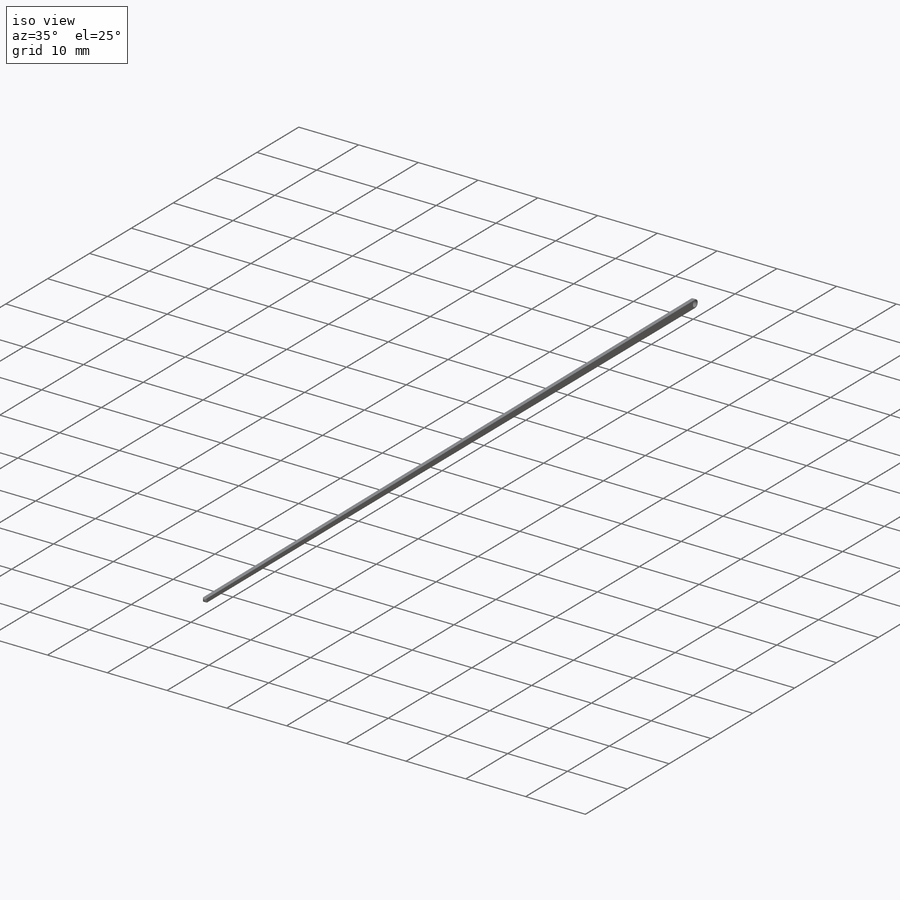
[diagram: iso view]
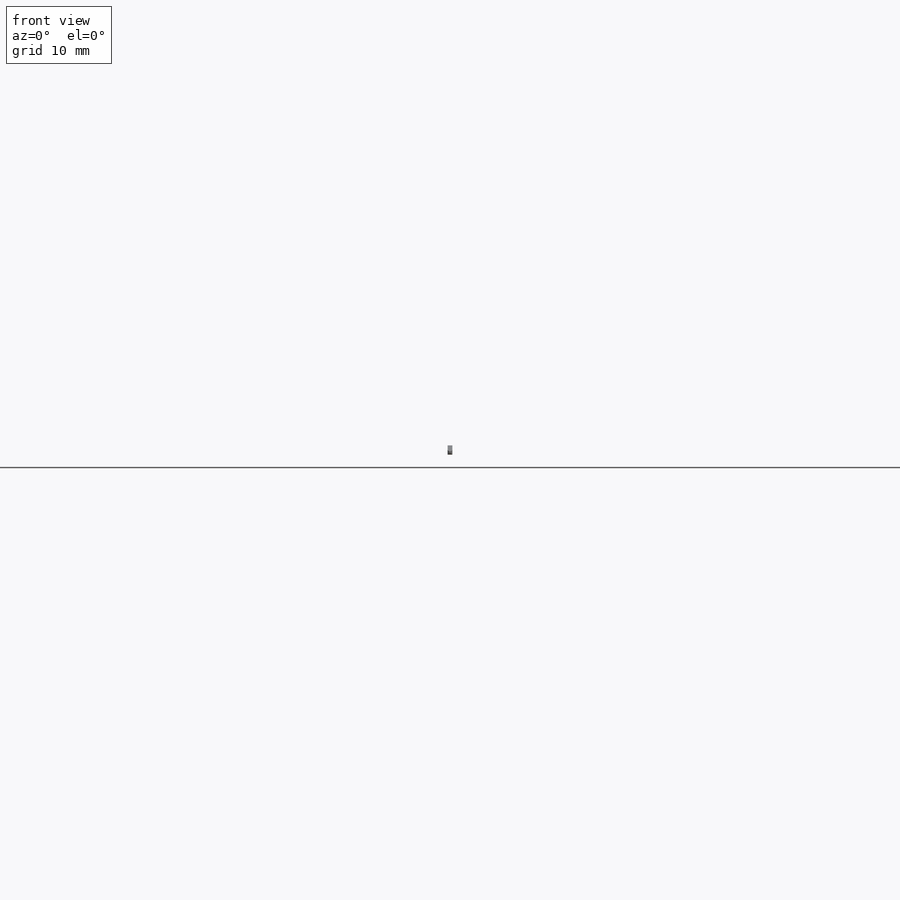
[diagram: front view]
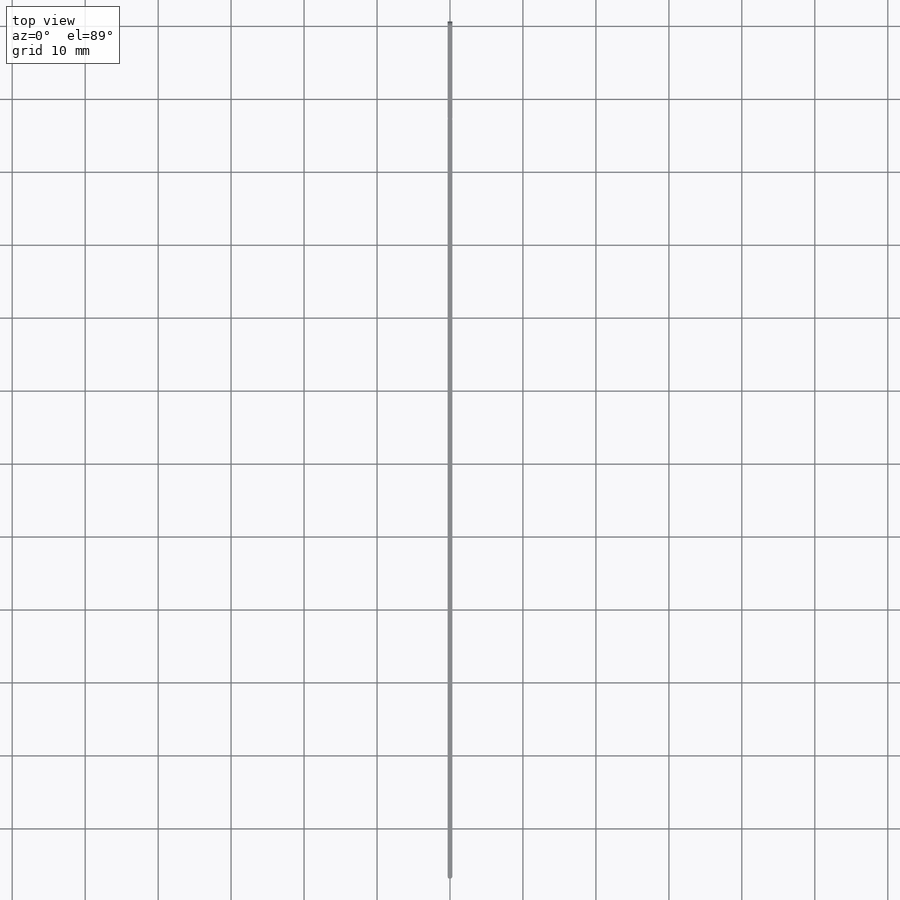
[diagram: top view]
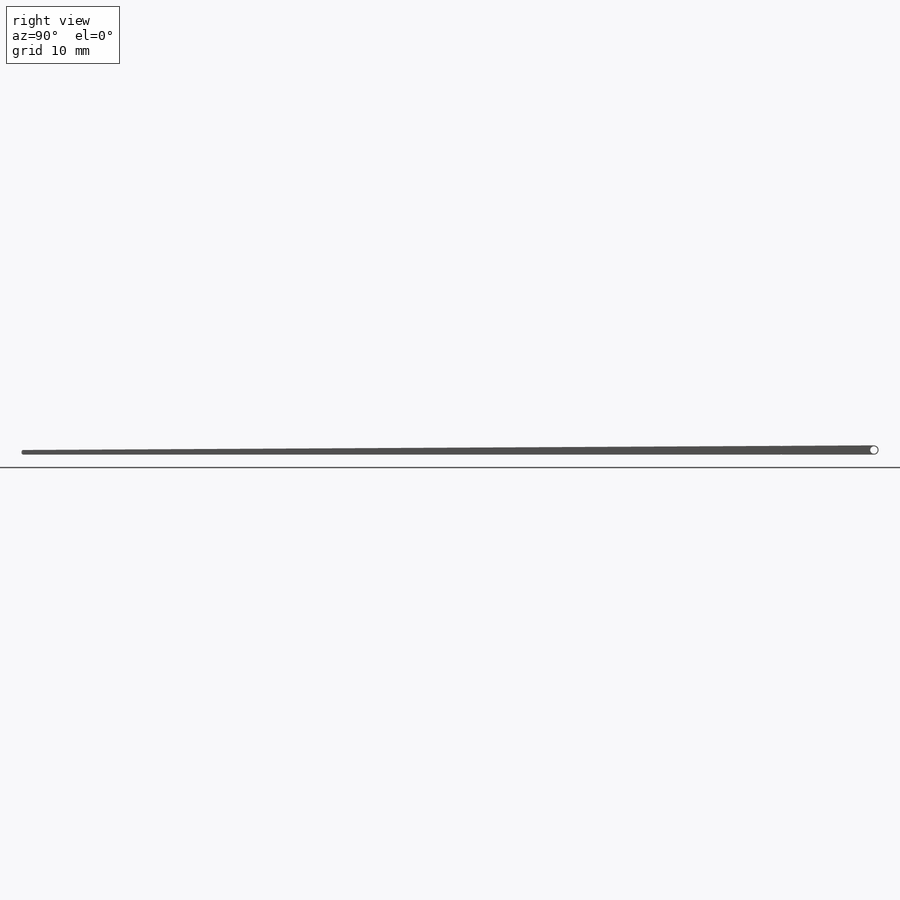
[diagram: right view]
SOLIDWORKS PART (.sldprt)
format: sldprt  version: not decoded by parser v0  size: 169,984 bytes
history: native  units: mm
features: sketch x2, material x1, extrude x1, fillet x1, plane x1, cut_extrude x1 (+13 scaffold rows collapsed)
feature tree (20):
  scaffold x13  (default folders/planes/origin — collapsed)
  material  "Material <not specified>"
  sketch  "Sketch2"  dims[D1=0.635mm D2=1.016mm D3=0.635mm D4=116.84mm]
  extrude  "Boss-Extrude1"  Depth=0.635mm
  fillet  "Fillet1"  Radius=0.254mm
  plane  "Plane1"  Offset=12.7mm
  sketch  "Sketch3"  dims[D1=0.0254mm D2=0.0254mm D3=1.524mm D4=1.016mm]
  cut_extrude  "Cut-Extrude1"  Depth=0.254mm
decode coverage: 5 of 5 modeling features carry decoded parameters
note: suppression state not decoded; provenance and decode notes live in map.json
